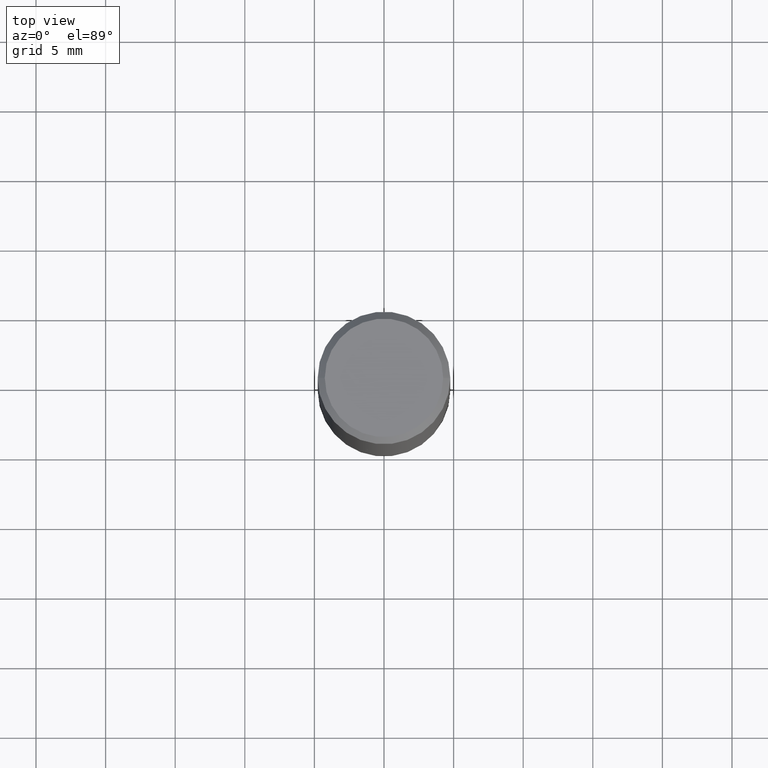
[diagram: clean part render]
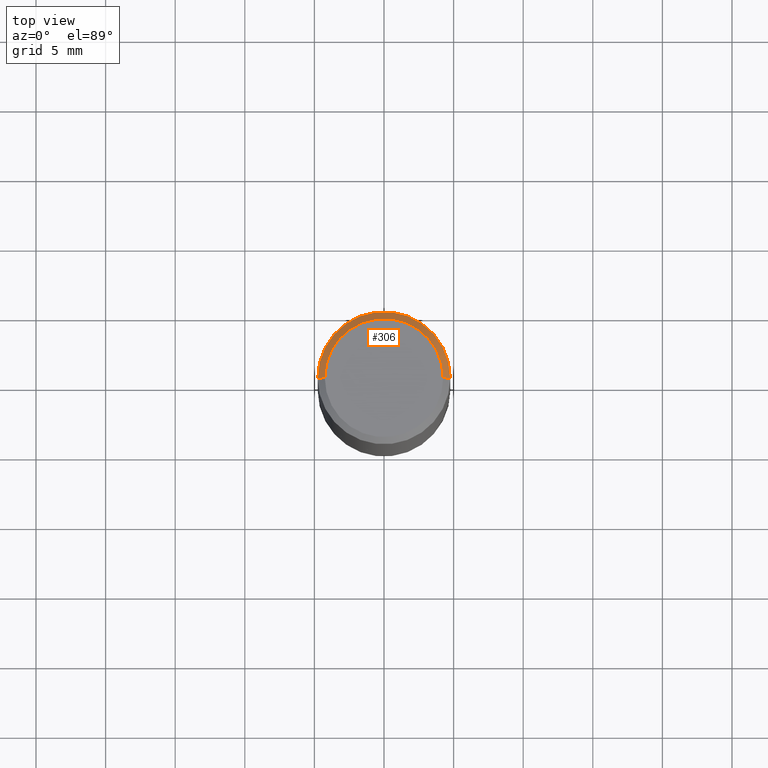
[diagram: same view with one face highlighted and labeled with its STEP entity id]
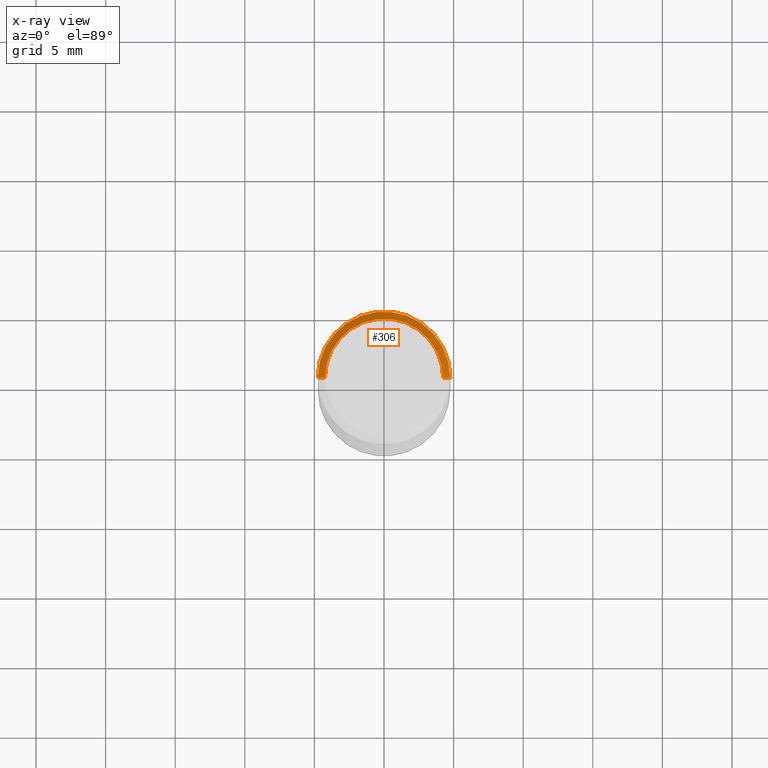
[diagram: x-ray of the same camera — body ghosted, the highlighted face saturated]
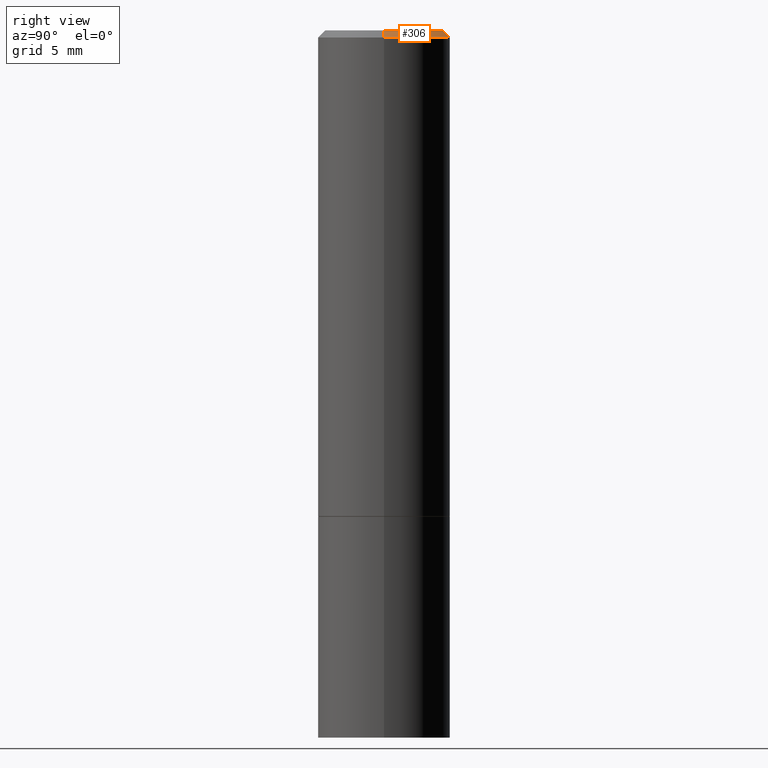
[diagram: same view with one face highlighted and labeled with its STEP entity id]
A machine part, top view. The second image highlights one B-rep face of the part: STEP entity #306.
The next image is the same camera in x-ray: the body ghosted, the highlighted face saturated — about 0% of this face is hidden behind the body in this view.
A second angle (right view) of the same face is appended — the face is thin or edge-on in the first view.
In plain terms, the highlighted conical surface has half-angle 45 deg.
Its self-contained STEP definition (entity closure, byte-faithful):
#9 = CARTESIAN_POINT ( 'NONE',  ( 4.890937612370283668E-31, -6.982962677686305168E-17, -0.02000000000000004205 ) ) ;
#13 = ORIENTED_EDGE ( 'NONE', *, *, #86, .F. ) ;
#17 = DIRECTION ( 'NONE',  ( 1.000000000000000000, -6.982962677686266711E-15, 4.876176775795936914E-29 ) ) ;
#26 = CARTESIAN_POINT ( 'NONE',  ( 0.1874999999999998335, -1.356173001359024283E-15, -0.02000000000000004205 ) ) ;
#30 = AXIS2_PLACEMENT_3D ( 'NONE', #198, #360, #253 ) ;
#38 = VERTEX_POINT ( 'NONE', #80 ) ;
#42 = CIRCLE ( 'NONE', #284, 0.1674999999999998435 ) ;
#45 = DIRECTION ( 'NONE',  ( 2.445468806185136597E-29, -3.491481338843145583E-15, -1.000000000000000000 ) ) ;
#53 = DIRECTION ( 'NONE',  ( -2.445468806185136597E-29, 3.491481338843145583E-15, 1.000000000000000000 ) ) ;
#56 = CARTESIAN_POINT ( 'NONE',  ( 0.1874999999999998335, -1.356173001359024283E-15, -0.02000000000000004205 ) ) ;
#57 = AXIS2_PLACEMENT_3D ( 'NONE', #9, #45, #211 ) ;
#61 = EDGE_LOOP ( 'NONE', ( #170, #310, #73, #13 ) ) ;
#73 = ORIENTED_EDGE ( 'NONE', *, *, #105, .T. ) ;
#80 = CARTESIAN_POINT ( 'NONE',  ( -0.1874999999999998335, 1.239475875289310724E-15, -0.02000000000000004205 ) ) ;
#84 = VERTEX_POINT ( 'NONE', #56 ) ;
#86 = EDGE_CURVE ( 'NONE', #102, #38, #187, .T. ) ;
#93 = LINE ( 'NONE', #26, #99 ) ;
#99 = VECTOR ( 'NONE', #197, 39.37007874015748143 ) ;
#101 = EDGE_CURVE ( 'NONE', #271, #102, #42, .T. ) ;
#102 = VERTEX_POINT ( 'NONE', #138 ) ;
#105 = EDGE_CURVE ( 'NONE', #84, #38, #177, .T. ) ;
#115 = DIRECTION ( 'NONE',  ( -0.7071067811865466846, 2.468850131082247989E-15, -0.7071067811865483499 ) ) ;
#138 = CARTESIAN_POINT ( 'NONE',  ( -0.1674999999999998435, 1.204561061900879864E-15, -8.301862719484106184E-30 ) ) ;
#158 = FACE_OUTER_BOUND ( 'NONE', #61, .T. ) ;
#170 = ORIENTED_EDGE ( 'NONE', *, *, #101, .F. ) ;
#177 = CIRCLE ( 'NONE', #30, 0.1874999999999998335 ) ;
#187 = LINE ( 'NONE', #324, #350 ) ;
#188 = EDGE_CURVE ( 'NONE', #271, #84, #93, .T. ) ;
#190 = CARTESIAN_POINT ( 'NONE',  ( 0.000000000000000000, 0.000000000000000000, 0.000000000000000000 ) ) ;
#197 = DIRECTION ( 'NONE',  ( 0.7071067811865466846, -7.319954787623252890E-15, -0.7071067811865483499 ) ) ;
#198 = CARTESIAN_POINT ( 'NONE',  ( 4.890937612370283668E-31, -6.982962677686305168E-17, -0.02000000000000004205 ) ) ;
#211 = DIRECTION ( 'NONE',  ( -1.000000000000000000, 6.982962677686266711E-15, 0.000000000000000000 ) ) ;
#216 = CONICAL_SURFACE ( 'NONE', #57, 0.1874999999999998335, 0.7853981633974471688 ) ;
#253 = DIRECTION ( 'NONE',  ( 1.000000000000000000, -6.982962677686266711E-15, 0.000000000000000000 ) ) ;
#265 = CARTESIAN_POINT ( 'NONE',  ( 0.1674999999999998435, -1.252653207992877302E-15, 8.469775550109232378E-30 ) ) ;
#271 = VERTEX_POINT ( 'NONE', #265 ) ;
#284 = AXIS2_PLACEMENT_3D ( 'NONE', #190, #53, #17 ) ;
#306 = ADVANCED_FACE ( 'NONE', ( #158 ), #216, .T. ) ;
#310 = ORIENTED_EDGE ( 'NONE', *, *, #188, .T. ) ;
#324 = CARTESIAN_POINT ( 'NONE',  ( -0.1874999999999998335, 1.239475875289310724E-15, -0.02000000000000004205 ) ) ;
#350 = VECTOR ( 'NONE', #115, 39.37007874015748143 ) ;
#360 = DIRECTION ( 'NONE',  ( -2.445468806185136597E-29, 3.491481338843145583E-15, 1.000000000000000000 ) ) ;